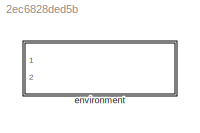
MODEL slx_2ec6828ded5b
KIND library
CONFIG AbsTol = auto
CONFIG EnableMultiTasking = on
CONFIG FixedStep = auto
CONFIG MaxStep = auto
CONFIG MinStep = auto
CONFIG RelTol = 1e-3
CONFIG SampleTimeConstraint = Unconstrained
CONFIG Solver = ode45
CONFIG SolverName = ode45
CONFIG StartTime = 0.0
CONFIG StopTime = 10.0
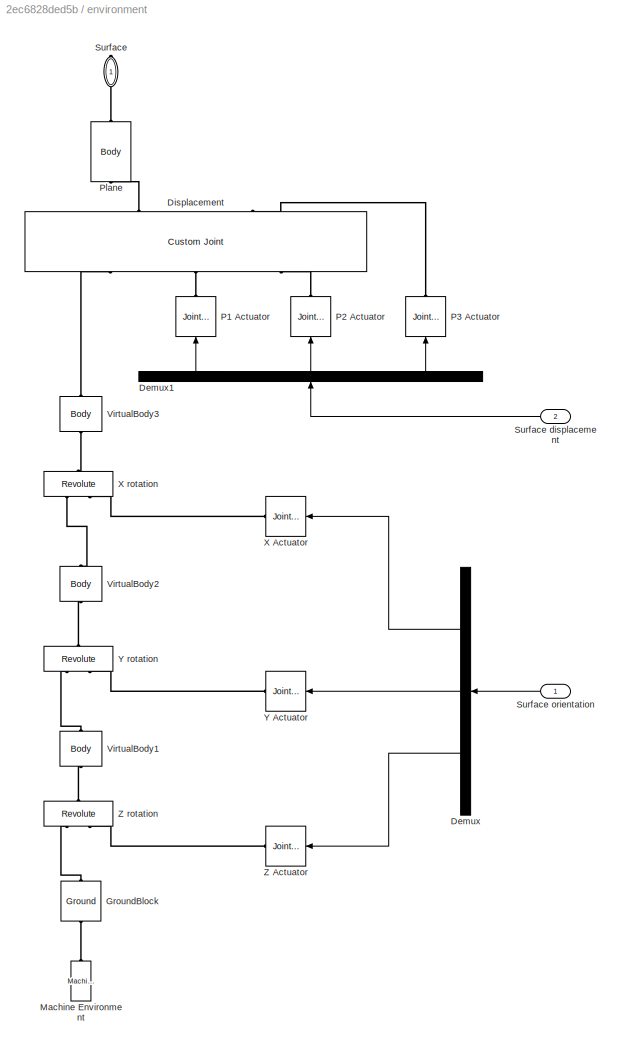
BLOCK [SubSystem] environment
  Ports = [2, 0, 0, 0, 0, 0, 1]
  RequestExecContextInheritance = off
  Variant = off
BLOCK [Demux] environment/Demux
  DisplayOption = bar
  Outputs = 3
  Ports = [1, 3]
BLOCK [Demux] environment/Demux1
  DisplayOption = bar
  Outputs = 3
  Ports = [1, 3]
BLOCK [Reference] environment/Displacement  REF=mblibv1/Joints/Custom Joint
  Ports = [0, 0, 0, 0, 0, 3, 2]
  SourceBlock = mblibv1/Joints/Custom Joint
  SourceProductBaseCode = MS
  SourceProductName = Simscape Multibody
  SourceType = Custom Joint
BLOCK [Reference] environment/GroundBlock  REF=mblibv1/Bodies/Ground
  Ports = [0, 0, 0, 0, 0, 1, 1]
  SourceBlock = mblibv1/Bodies/Ground
  SourceProductBaseCode = MS
  SourceProductName = Simscape Multibody
  SourceType = Ground
  UserDataPersistent = on
BLOCK [Reference] environment/Machine Environment  REF=mblibv1/Bodies/Machine
Environment
  Ports = [0, 0, 0, 0, 0, 0, 1]
  SourceBlock = mblibv1/Bodies/Machine\nEnvironment
  SourceProductBaseCode = MS
  SourceProductName = Simscape Multibody
  SourceType = Machine Environment
BLOCK [Reference] environment/P1 Actuator  REF=mblibv1/Sensors & 
Actuators/Joint Actuator
  Ports = [1, 0, 0, 0, 0, 0, 1]
  SourceBlock = mblibv1/Sensors & \nActuators/Joint Actuator
  SourceProductBaseCode = MS
  SourceProductName = Simscape Multibody
  SourceType = Joint Actuator
BLOCK [Reference] environment/P2 Actuator  REF=mblibv1/Sensors & 
Actuators/Joint Actuator
  Ports = [1, 0, 0, 0, 0, 0, 1]
  SourceBlock = mblibv1/Sensors & \nActuators/Joint Actuator
  SourceProductBaseCode = MS
  SourceProductName = Simscape Multibody
  SourceType = Joint Actuator
BLOCK [Reference] environment/P3 Actuator  REF=mblibv1/Sensors & 
Actuators/Joint Actuator
  Ports = [1, 0, 0, 0, 0, 0, 1]
  SourceBlock = mblibv1/Sensors & \nActuators/Joint Actuator
  SourceProductBaseCode = MS
  SourceProductName = Simscape Multibody
  SourceType = Joint Actuator
BLOCK [Reference] environment/Plane  REF=mblibv1/Bodies/Body
  Ports = [0, 0, 0, 0, 0, 1, 1]
  SourceBlock = mblibv1/Bodies/Body
  SourceProductBaseCode = MS
  SourceProductName = Simscape Multibody
  SourceType = Body
BLOCK [PMIOPort] environment/Surface
  Port = 1
  Side = Right
BLOCK [Inport] environment/Surface displacement
  IconDisplay = Port number
  Port = 2
BLOCK [Inport] environment/Surface orientation
  IconDisplay = Port number
BLOCK [Reference] environment/VirtualBody1  REF=mblibv1/Bodies/Body
  Ports = [0, 0, 0, 0, 0, 1, 1]
  SourceBlock = mblibv1/Bodies/Body
  SourceProductBaseCode = MS
  SourceProductName = Simscape Multibody
  SourceType = Body
BLOCK [Reference] environment/VirtualBody2  REF=mblibv1/Bodies/Body
  Ports = [0, 0, 0, 0, 0, 1, 1]
  SourceBlock = mblibv1/Bodies/Body
  SourceProductBaseCode = MS
  SourceProductName = Simscape Multibody
  SourceType = Body
BLOCK [Reference] environment/VirtualBody3  REF=mblibv1/Bodies/Body
  Ports = [0, 0, 0, 0, 0, 1, 1]
  SourceBlock = mblibv1/Bodies/Body
  SourceProductBaseCode = MS
  SourceProductName = Simscape Multibody
  SourceType = Body
BLOCK [Reference] environment/X Actuator  REF=mblibv1/Sensors & 
Actuators/Joint Actuator
  Ports = [1, 0, 0, 0, 0, 0, 1]
  SourceBlock = mblibv1/Sensors & \nActuators/Joint Actuator
  SourceProductBaseCode = MS
  SourceProductName = Simscape Multibody
  SourceType = Joint Actuator
BLOCK [Reference] environment/X rotation  REF=mblibv1/Joints/Revolute
  Ports = [0, 0, 0, 0, 0, 2, 1]
  SourceBlock = mblibv1/Joints/Revolute
  SourceProductBaseCode = MS
  SourceProductName = Simscape Multibody
  SourceType = Revolute
BLOCK [Reference] environment/Y Actuator  REF=mblibv1/Sensors & 
Actuators/Joint Actuator
  Ports = [1, 0, 0, 0, 0, 0, 1]
  SourceBlock = mblibv1/Sensors & \nActuators/Joint Actuator
  SourceProductBaseCode = MS
  SourceProductName = Simscape Multibody
  SourceType = Joint Actuator
BLOCK [Reference] environment/Y rotation  REF=mblibv1/Joints/Revolute
  Ports = [0, 0, 0, 0, 0, 2, 1]
  SourceBlock = mblibv1/Joints/Revolute
  SourceProductBaseCode = MS
  SourceProductName = Simscape Multibody
  SourceType = Revolute
BLOCK [Reference] environment/Z Actuator  REF=mblibv1/Sensors & 
Actuators/Joint Actuator
  Ports = [1, 0, 0, 0, 0, 0, 1]
  SourceBlock = mblibv1/Sensors & \nActuators/Joint Actuator
  SourceProductBaseCode = MS
  SourceProductName = Simscape Multibody
  SourceType = Joint Actuator
BLOCK [Reference] environment/Z rotation  REF=mblibv1/Joints/Revolute
  Ports = [0, 0, 0, 0, 0, 2, 1]
  SourceBlock = mblibv1/Joints/Revolute
  SourceProductBaseCode = MS
  SourceProductName = Simscape Multibody
  SourceType = Revolute
LINE environment/Demux1:1 -> environment/P1 Actuator:1
LINE environment/Demux1:2 -> environment/P2 Actuator:1
LINE environment/Demux1:3 -> environment/P3 Actuator:1
LINE environment/Demux:1 -> environment/X Actuator:1
LINE environment/Demux:2 -> environment/Y Actuator:1
LINE environment/Demux:3 -> environment/Z Actuator:1
LINE environment/Surface displacement:1 -> environment/Demux1:1
LINE environment/Surface orientation:1 -> environment/Demux:1
PLINE environment/Displacement:LConn1 -- environment/VirtualBody3:LConn1
PLINE environment/Displacement:LConn2 -- environment/P1 Actuator:RConn1
PLINE environment/Displacement:LConn3 -- environment/P2 Actuator:RConn1
PLINE environment/Displacement:RConn1 -- environment/Plane:RConn1
PLINE environment/Displacement:RConn2 -- environment/P3 Actuator:RConn1
PLINE environment/GroundBlock:LConn1 -- environment/Machine Environment:RConn1
PLINE environment/GroundBlock:RConn1 -- environment/Z rotation:LConn1
PLINE environment/Plane:LConn1 -- environment/Surface:RConn1
PLINE environment/VirtualBody1:LConn1 -- environment/Y rotation:LConn1
PLINE environment/VirtualBody1:RConn1 -- environment/Z rotation:RConn1
PLINE environment/VirtualBody2:LConn1 -- environment/X rotation:LConn1
PLINE environment/VirtualBody2:RConn1 -- environment/Y rotation:RConn1
PLINE environment/VirtualBody3:RConn1 -- environment/X rotation:RConn1
PLINE environment/X Actuator:RConn1 -- environment/X rotation:LConn2
PLINE environment/Y Actuator:RConn1 -- environment/Y rotation:LConn2
PLINE environment/Z Actuator:RConn1 -- environment/Z rotation:LConn2
